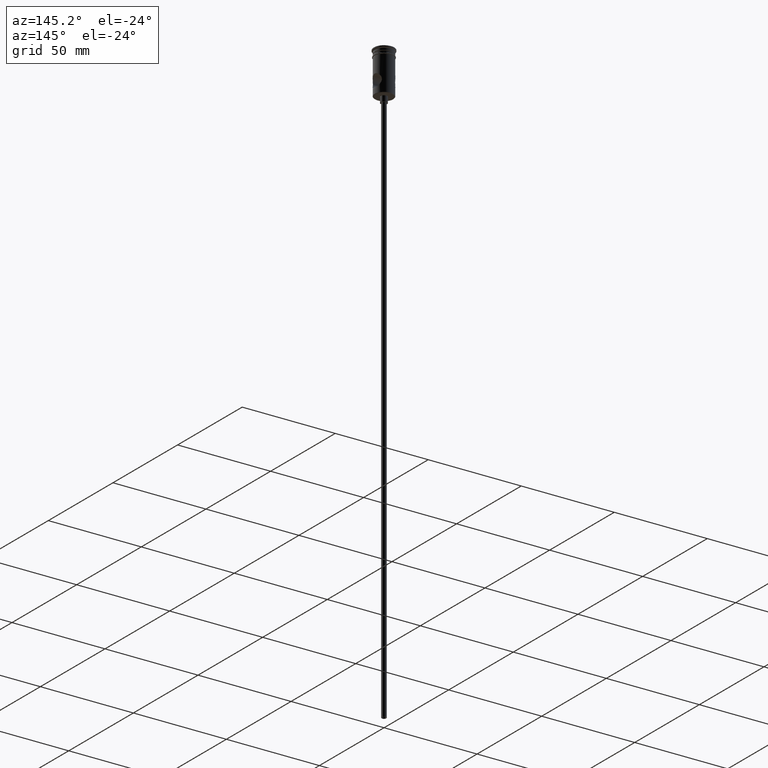
[diagram: clean part render]
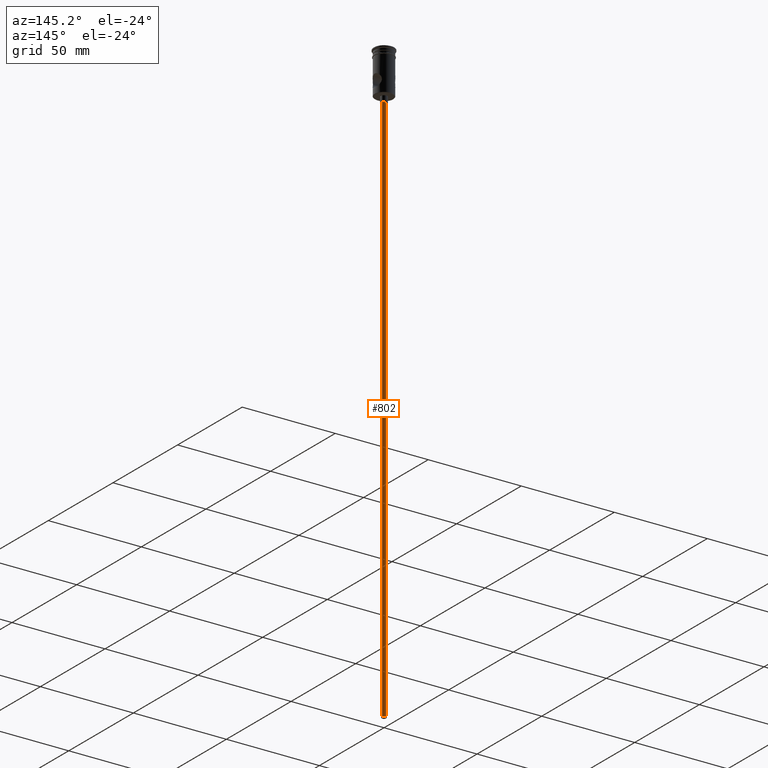
[diagram: same view with one face highlighted and labeled with its STEP entity id]
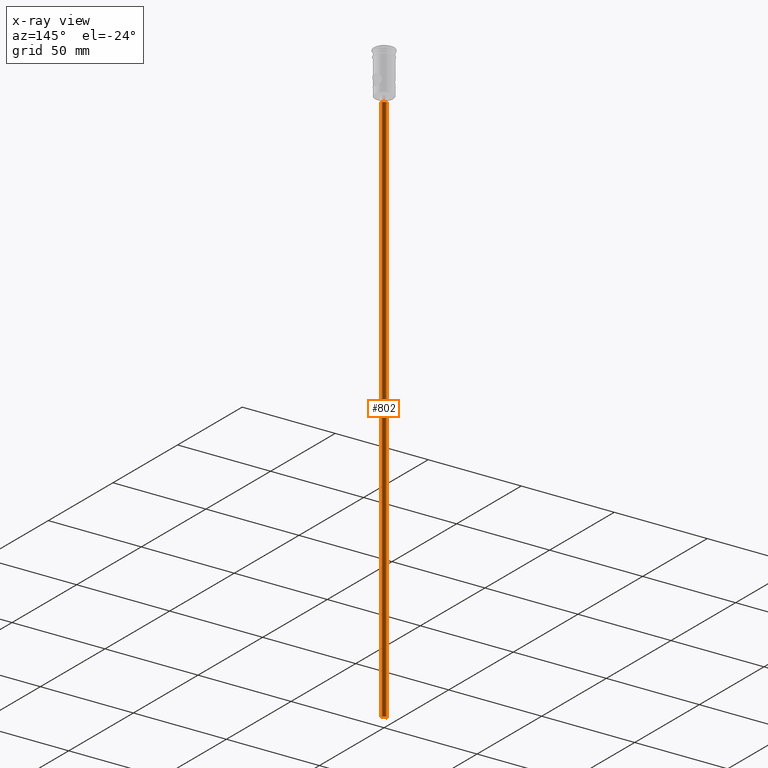
[diagram: x-ray of the same camera — body ghosted, the highlighted face saturated]
A machine part, auxiliary view. The second image highlights one B-rep face of the part: STEP entity #802.
The next image is the same camera in x-ray: the body ghosted, the highlighted face saturated — about 0% of this face is hidden behind the body in this view.
In plain terms, the highlighted cylindrical surface (edge-blend (fillet) strip) has radius 1.25 mm, axis along (-0, -0, 1).
Its self-contained STEP definition (entity closure, byte-faithful):
#56 = DIRECTION ( 'NONE',  ( 0.000000000000000000, 0.000000000000000000, -1.000000000000000000 ) ) ;
#116 = CARTESIAN_POINT ( 'NONE',  ( -1.250000000000000000, 1.530808498934191571E-16, -322.5000000000000000 ) ) ;
#201 = DIRECTION ( 'NONE',  ( 1.000000000000000000, 0.000000000000000000, 0.000000000000000000 ) ) ;
#228 = ORIENTED_EDGE ( 'NONE', *, *, #1176, .F. ) ;
#231 = EDGE_CURVE ( 'NONE', #1112, #748, #1120, .T. ) ;
#279 = CARTESIAN_POINT ( 'NONE',  ( 0.000000000000000000, 0.000000000000000000, -322.5000000000000000 ) ) ;
#297 = LINE ( 'NONE', #727, #632 ) ;
#318 = FACE_OUTER_BOUND ( 'NONE', #1079, .T. ) ;
#341 = EDGE_CURVE ( 'NONE', #1112, #1076, #1102, .T. ) ;
#353 = CIRCLE ( 'NONE', #857, 1.250000000000000000 ) ;
#374 = AXIS2_PLACEMENT_3D ( 'NONE', #279, #56, #620 ) ;
#427 = DIRECTION ( 'NONE',  ( -0.000000000000000000, -0.000000000000000000, 1.000000000000000000 ) ) ;
#431 = CARTESIAN_POINT ( 'NONE',  ( -1.250000000000000000, 1.530808498934191571E-16, -322.5000000000000000 ) ) ;
#576 = CARTESIAN_POINT ( 'NONE',  ( 0.000000000000000000, 0.000000000000000000, -25.50000000000000000 ) ) ;
#596 = EDGE_CURVE ( 'NONE', #1076, #1339, #353, .T. ) ;
#610 = DIRECTION ( 'NONE',  ( -1.000000000000000000, 0.000000000000000000, 0.000000000000000000 ) ) ;
#620 = DIRECTION ( 'NONE',  ( -1.000000000000000000, 0.000000000000000000, 0.000000000000000000 ) ) ;
#632 = VECTOR ( 'NONE', #863, 1000.000000000000000 ) ;
#695 = DIRECTION ( 'NONE',  ( 0.000000000000000000, 0.000000000000000000, -1.000000000000000000 ) ) ;
#727 = CARTESIAN_POINT ( 'NONE',  ( 1.250000000000000000, 0.000000000000000000, -322.5000000000000000 ) ) ;
#732 = CYLINDRICAL_SURFACE ( 'NONE', #1362, 1.250000000000000000 ) ;
#748 = VERTEX_POINT ( 'NONE', #1416 ) ;
#763 = CARTESIAN_POINT ( 'NONE',  ( 0.000000000000000000, 0.000000000000000000, -322.5000000000000000 ) ) ;
#802 = ADVANCED_FACE ( 'NONE', ( #318 ), #732, .T. ) ;
#857 = AXIS2_PLACEMENT_3D ( 'NONE', #576, #695, #610 ) ;
#863 = DIRECTION ( 'NONE',  ( -0.000000000000000000, -0.000000000000000000, 1.000000000000000000 ) ) ;
#945 = VECTOR ( 'NONE', #427, 1000.000000000000000 ) ;
#1026 = CARTESIAN_POINT ( 'NONE',  ( -1.250000000000000000, 1.530808498934191571E-16, -25.50000000000000000 ) ) ;
#1064 = ORIENTED_EDGE ( 'NONE', *, *, #231, .F. ) ;
#1076 = VERTEX_POINT ( 'NONE', #1026 ) ;
#1079 = EDGE_LOOP ( 'NONE', ( #1064, #1227, #1130, #228 ) ) ;
#1102 = LINE ( 'NONE', #116, #945 ) ;
#1112 = VERTEX_POINT ( 'NONE', #431 ) ;
#1120 = CIRCLE ( 'NONE', #374, 1.250000000000000000 ) ;
#1130 = ORIENTED_EDGE ( 'NONE', *, *, #596, .T. ) ;
#1176 = EDGE_CURVE ( 'NONE', #748, #1339, #297, .T. ) ;
#1227 = ORIENTED_EDGE ( 'NONE', *, *, #341, .T. ) ;
#1281 = CARTESIAN_POINT ( 'NONE',  ( 1.250000000000000000, 0.000000000000000000, -25.50000000000000000 ) ) ;
#1321 = DIRECTION ( 'NONE',  ( -0.000000000000000000, -0.000000000000000000, 1.000000000000000000 ) ) ;
#1339 = VERTEX_POINT ( 'NONE', #1281 ) ;
#1362 = AXIS2_PLACEMENT_3D ( 'NONE', #763, #1321, #201 ) ;
#1416 = CARTESIAN_POINT ( 'NONE',  ( 1.250000000000000000, 0.000000000000000000, -322.5000000000000000 ) ) ;